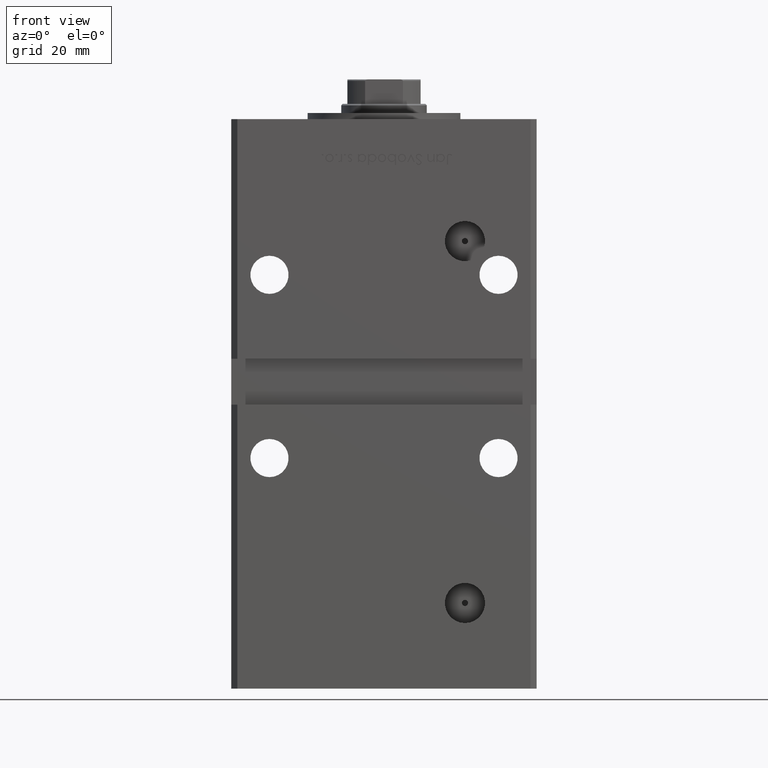
[diagram: clean part render]
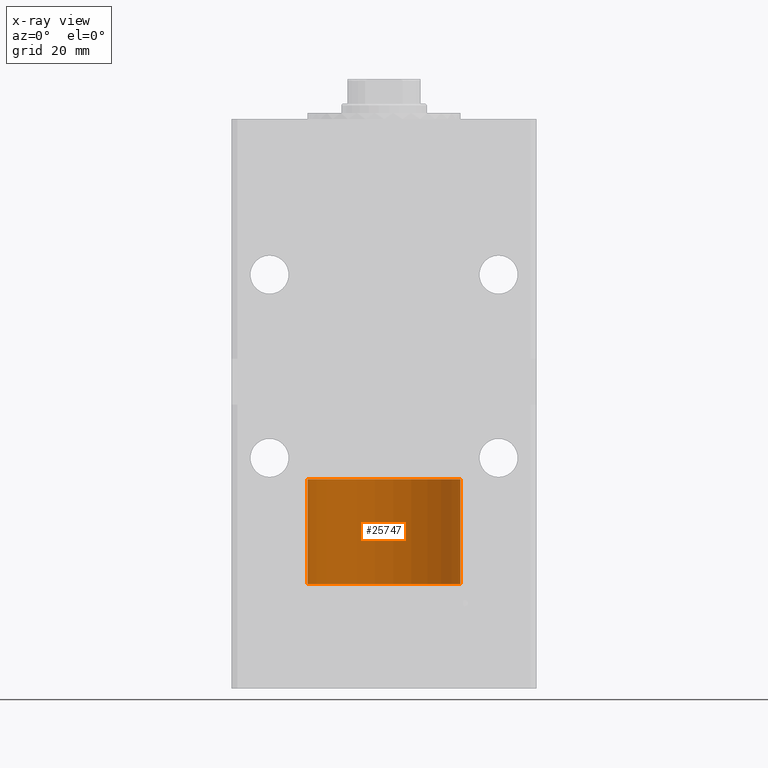
[diagram: x-ray — body ghosted, one internal face saturated and labeled with its STEP entity id]
A machine part, front view, then the same camera in x-ray: the body is ghosted and one INTERNAL B-rep face — a face not visible from any outside direction — is saturated and labeled: STEP entity #25747.
In plain terms, the highlighted cylindrical surface (partial cylindrical patch) has radius 25 mm, axis along (-0, -0, -1).
Its self-contained STEP definition (entity closure, byte-faithful):
#651 = CARTESIAN_POINT ( 'NONE',  ( -25.00000000000000000, 0.000000000000000000, 0.000000000000000000 ) ) ;
#4539 = CIRCLE ( 'NONE', #29388, 25.00000000000000000 ) ;
#5341 = CARTESIAN_POINT ( 'NONE',  ( 0.000000000000000000, 0.000000000000000000, 34.25000000000000000 ) ) ;
#7543 = DIRECTION ( 'NONE',  ( 1.000000000000000000, 0.000000000000000000, 0.000000000000000000 ) ) ;
#8818 = EDGE_CURVE ( 'NONE', #49113, #41369, #31703, .T. ) ;
#9483 = ORIENTED_EDGE ( 'NONE', *, *, #8818, .F. ) ;
#9643 = ORIENTED_EDGE ( 'NONE', *, *, #14685, .T. ) ;
#9710 = ORIENTED_EDGE ( 'NONE', *, *, #23106, .T. ) ;
#10801 = AXIS2_PLACEMENT_3D ( 'NONE', #34741, #38511, #47378 ) ;
#11342 = CARTESIAN_POINT ( 'NONE',  ( 25.00000000000000000, 3.061616997868383043E-15, 34.25000000000000000 ) ) ;
#12679 = DIRECTION ( 'NONE',  ( -0.000000000000000000, -0.000000000000000000, -1.000000000000000000 ) ) ;
#14685 = EDGE_CURVE ( 'NONE', #47859, #41369, #4539, .T. ) ;
#15226 = CIRCLE ( 'NONE', #10801, 25.00000000000000000 ) ;
#17304 = VECTOR ( 'NONE', #21725, 1000.000000000000000 ) ;
#21725 = DIRECTION ( 'NONE',  ( -0.000000000000000000, -0.000000000000000000, -1.000000000000000000 ) ) ;
#22507 = DIRECTION ( 'NONE',  ( -0.000000000000000000, -0.000000000000000000, -1.000000000000000000 ) ) ;
#23106 = EDGE_CURVE ( 'NONE', #49525, #47859, #48187, .T. ) ;
#23112 = CARTESIAN_POINT ( 'NONE',  ( 25.00000000000000000, 3.061616997868383043E-15, 0.000000000000000000 ) ) ;
#25747 = ADVANCED_FACE ( 'NONE', ( #34614 ), #42149, .T. ) ;
#27672 = CARTESIAN_POINT ( 'NONE',  ( -25.00000000000000000, 0.000000000000000000, 34.25000000000000000 ) ) ;
#27972 = CARTESIAN_POINT ( 'NONE',  ( 0.000000000000000000, 0.000000000000000000, 0.000000000000000000 ) ) ;
#29386 = EDGE_CURVE ( 'NONE', #49525, #49113, #15226, .T. ) ;
#29388 = AXIS2_PLACEMENT_3D ( 'NONE', #27972, #44371, #7543 ) ;
#31703 = LINE ( 'NONE', #27672, #17304 ) ;
#32231 = ORIENTED_EDGE ( 'NONE', *, *, #29386, .F. ) ;
#34614 = FACE_OUTER_BOUND ( 'NONE', #47169, .T. ) ;
#34741 = CARTESIAN_POINT ( 'NONE',  ( 0.000000000000000000, 0.000000000000000000, 34.25000000000000000 ) ) ;
#36501 = VECTOR ( 'NONE', #12679, 1000.000000000000000 ) ;
#37440 = AXIS2_PLACEMENT_3D ( 'NONE', #5341, #22507, #38904 ) ;
#38511 = DIRECTION ( 'NONE',  ( 0.000000000000000000, 0.000000000000000000, 1.000000000000000000 ) ) ;
#38904 = DIRECTION ( 'NONE',  ( -1.000000000000000000, 0.000000000000000000, 0.000000000000000000 ) ) ;
#39449 = CARTESIAN_POINT ( 'NONE',  ( 25.00000000000000000, 3.061616997868383043E-15, 34.25000000000000000 ) ) ;
#41369 = VERTEX_POINT ( 'NONE', #651 ) ;
#42149 = CYLINDRICAL_SURFACE ( 'NONE', #37440, 25.00000000000000000 ) ;
#44371 = DIRECTION ( 'NONE',  ( 0.000000000000000000, 0.000000000000000000, 1.000000000000000000 ) ) ;
#47169 = EDGE_LOOP ( 'NONE', ( #32231, #9710, #9643, #9483 ) ) ;
#47378 = DIRECTION ( 'NONE',  ( 1.000000000000000000, 0.000000000000000000, 0.000000000000000000 ) ) ;
#47685 = CARTESIAN_POINT ( 'NONE',  ( -25.00000000000000000, 0.000000000000000000, 34.25000000000000000 ) ) ;
#47859 = VERTEX_POINT ( 'NONE', #23112 ) ;
#48187 = LINE ( 'NONE', #11342, #36501 ) ;
#49113 = VERTEX_POINT ( 'NONE', #47685 ) ;
#49525 = VERTEX_POINT ( 'NONE', #39449 ) ;